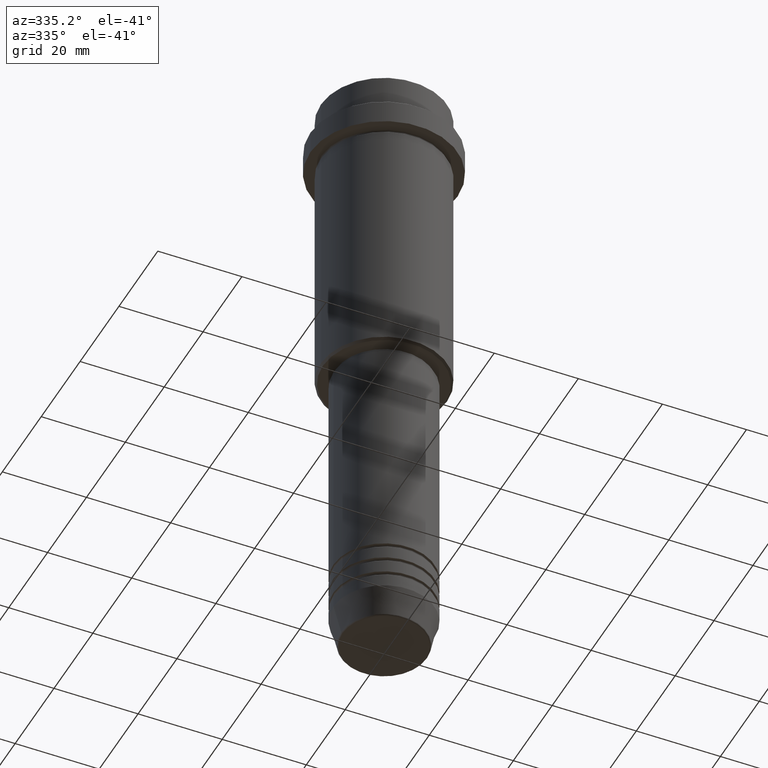
[diagram: clean part render]
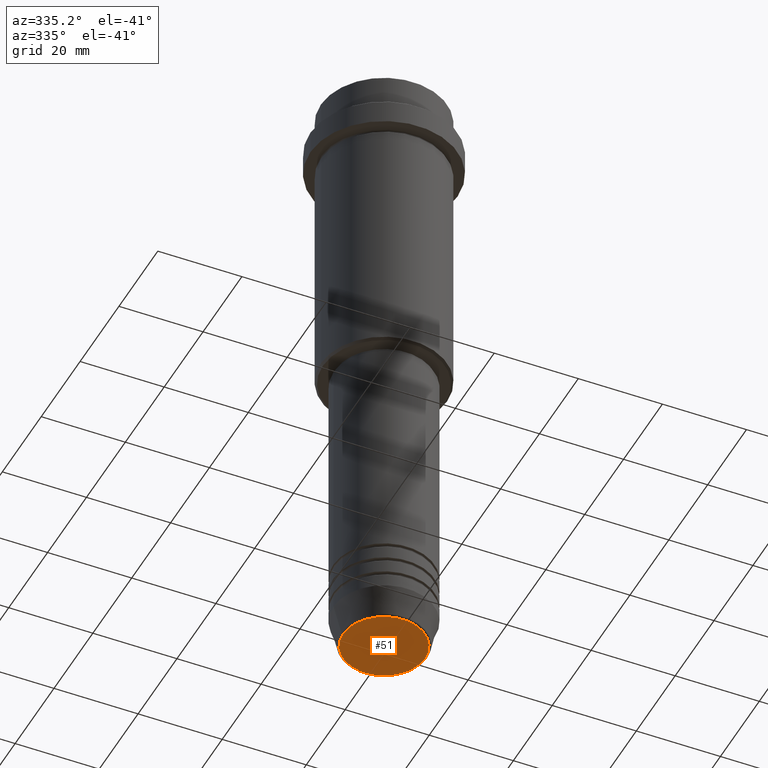
[diagram: same view with one face highlighted and labeled with its STEP entity id]
A machine part, auxiliary view. The second image highlights one B-rep face of the part: STEP entity #51.
In plain terms, the highlighted planar face has unit normal (0, -0, 1).
Its self-contained STEP definition (entity closure, byte-faithful):
#8 = CARTESIAN_POINT ( 'NONE',  ( 0.000000000000000000, 0.000000000000000000, -150.0000000000000000 ) ) ;
#29 = CIRCLE ( 'NONE', #732, 9.740692158992658278 ) ;
#51 = ADVANCED_FACE ( 'NONE', ( #1203 ), #231, .F. ) ;
#96 = VERTEX_POINT ( 'NONE', #156 ) ;
#122 = ORIENTED_EDGE ( 'NONE', *, *, #869, .T. ) ;
#156 = CARTESIAN_POINT ( 'NONE',  ( 9.740692158992658278, 0.000000000000000000, -150.0000000000000000 ) ) ;
#231 = PLANE ( 'NONE',  #455 ) ;
#233 = DIRECTION ( 'NONE',  ( 1.000000000000000000, 0.000000000000000000, 0.000000000000000000 ) ) ;
#251 = CARTESIAN_POINT ( 'NONE',  ( 0.000000000000000000, 0.000000000000000000, -150.0000000000000000 ) ) ;
#398 = ORIENTED_EDGE ( 'NONE', *, *, #948, .T. ) ;
#448 = DIRECTION ( 'NONE',  ( 0.000000000000000000, 0.000000000000000000, -1.000000000000000000 ) ) ;
#455 = AXIS2_PLACEMENT_3D ( 'NONE', #251, #558, #570 ) ;
#461 = CARTESIAN_POINT ( 'NONE',  ( -9.740692158992658278, 1.222463696683474999E-15, -150.0000000000000000 ) ) ;
#470 = CARTESIAN_POINT ( 'NONE',  ( 0.000000000000000000, 0.000000000000000000, -150.0000000000000000 ) ) ;
#558 = DIRECTION ( 'NONE',  ( 0.000000000000000000, -0.000000000000000000, 1.000000000000000000 ) ) ;
#570 = DIRECTION ( 'NONE',  ( 1.000000000000000000, 0.000000000000000000, 0.000000000000000000 ) ) ;
#667 = EDGE_LOOP ( 'NONE', ( #398, #122 ) ) ;
#732 = AXIS2_PLACEMENT_3D ( 'NONE', #8, #448, #233 ) ;
#779 = AXIS2_PLACEMENT_3D ( 'NONE', #470, #1013, #1035 ) ;
#800 = CIRCLE ( 'NONE', #779, 9.740692158992658278 ) ;
#869 = EDGE_CURVE ( 'NONE', #919, #96, #29, .T. ) ;
#919 = VERTEX_POINT ( 'NONE', #461 ) ;
#948 = EDGE_CURVE ( 'NONE', #96, #919, #800, .T. ) ;
#1013 = DIRECTION ( 'NONE',  ( 0.000000000000000000, 0.000000000000000000, -1.000000000000000000 ) ) ;
#1035 = DIRECTION ( 'NONE',  ( 1.000000000000000000, 0.000000000000000000, 0.000000000000000000 ) ) ;
#1203 = FACE_OUTER_BOUND ( 'NONE', #667, .T. ) ;